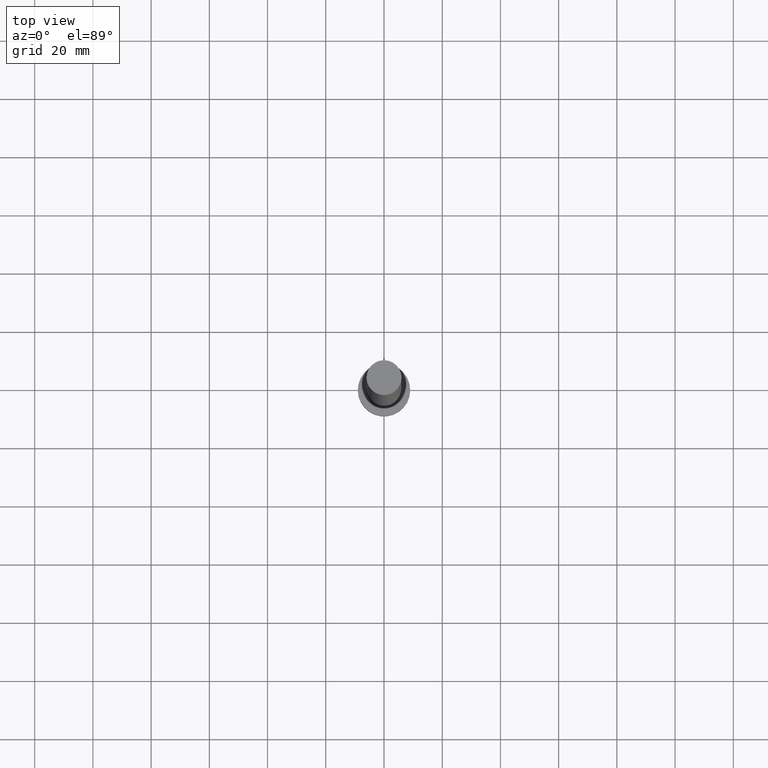
[diagram: clean part render]
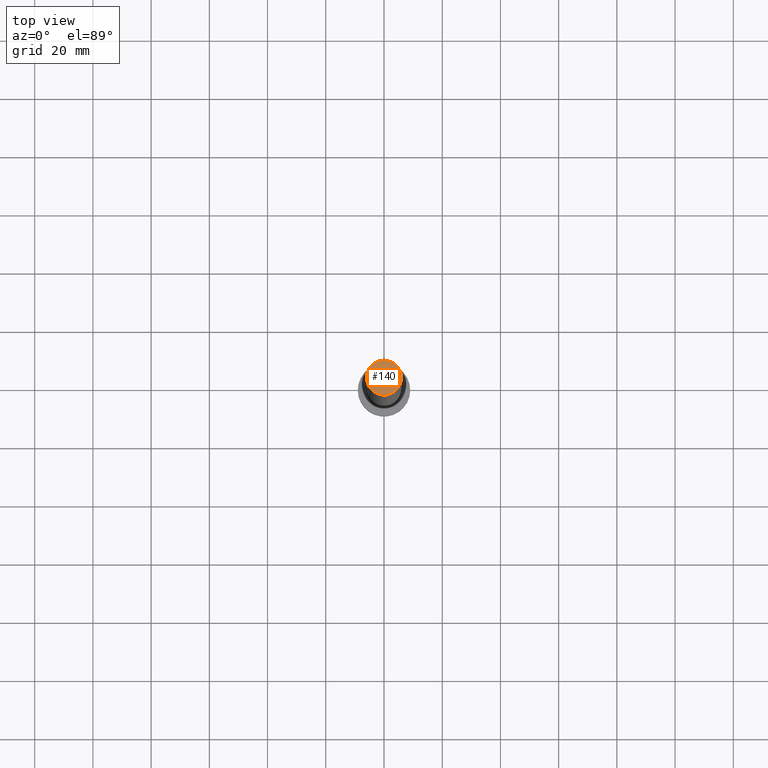
[diagram: same view with one face highlighted and labeled with its STEP entity id]
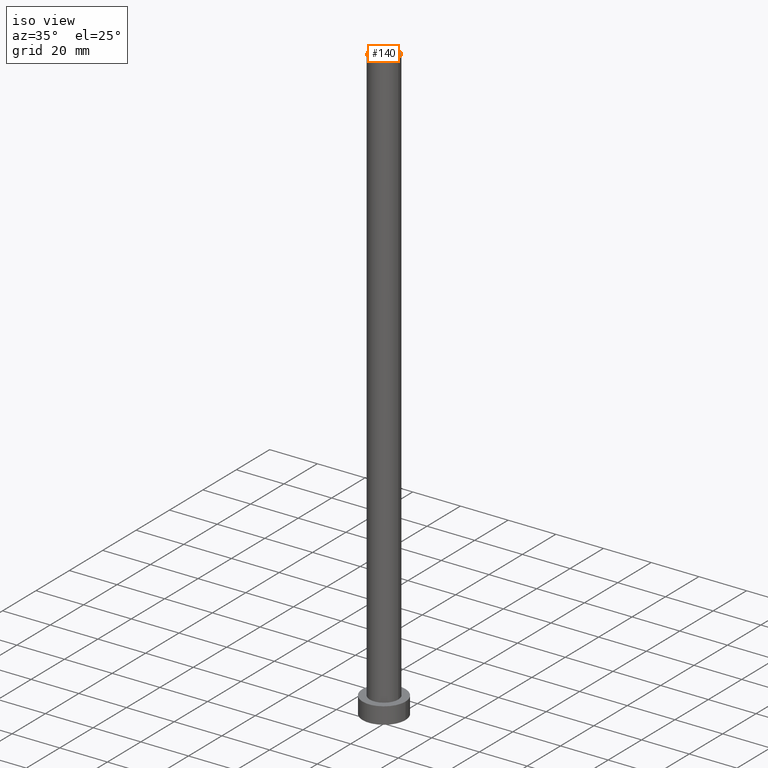
[diagram: same view with one face highlighted and labeled with its STEP entity id]
A machine part, top view. The second image highlights one B-rep face of the part: STEP entity #140.
A second angle (iso view) of the same face is appended — the face is thin or edge-on in the first view.
In plain terms, the highlighted planar face has unit normal (0, 0, 1).
Its self-contained STEP definition (entity closure, byte-faithful):
#11 = AXIS2_PLACEMENT_3D ( 'NONE', #236, #40, #215 ) ;
#12 = CARTESIAN_POINT ( 'NONE',  ( 0.000000000000000000, 0.000000000000000000, 250.0000000000000000 ) ) ;
#21 = DIRECTION ( 'NONE',  ( 0.000000000000000000, 0.000000000000000000, 1.000000000000000000 ) ) ;
#26 = EDGE_LOOP ( 'NONE', ( #63, #92 ) ) ;
#27 = AXIS2_PLACEMENT_3D ( 'NONE', #158, #21, #238 ) ;
#36 = CARTESIAN_POINT ( 'NONE',  ( -6.000000000000000888, 0.000000000000000000, 250.0000000000000000 ) ) ;
#37 = CIRCLE ( 'NONE', #27, 6.000000000000000888 ) ;
#40 = DIRECTION ( 'NONE',  ( 0.000000000000000000, 0.000000000000000000, 1.000000000000000000 ) ) ;
#42 = CIRCLE ( 'NONE', #74, 6.000000000000000888 ) ;
#48 = EDGE_CURVE ( 'NONE', #107, #53, #42, .T. ) ;
#53 = VERTEX_POINT ( 'NONE', #36 ) ;
#63 = ORIENTED_EDGE ( 'NONE', *, *, #150, .T. ) ;
#74 = AXIS2_PLACEMENT_3D ( 'NONE', #12, #113, #227 ) ;
#76 = FACE_OUTER_BOUND ( 'NONE', #26, .T. ) ;
#92 = ORIENTED_EDGE ( 'NONE', *, *, #48, .T. ) ;
#107 = VERTEX_POINT ( 'NONE', #157 ) ;
#113 = DIRECTION ( 'NONE',  ( 0.000000000000000000, 0.000000000000000000, 1.000000000000000000 ) ) ;
#140 = ADVANCED_FACE ( 'NONE', ( #76 ), #174, .T. ) ;
#150 = EDGE_CURVE ( 'NONE', #53, #107, #37, .T. ) ;
#157 = CARTESIAN_POINT ( 'NONE',  ( 6.000000000000000888, 7.347880794884120722E-16, 250.0000000000000000 ) ) ;
#158 = CARTESIAN_POINT ( 'NONE',  ( 0.000000000000000000, 0.000000000000000000, 250.0000000000000000 ) ) ;
#174 = PLANE ( 'NONE',  #11 ) ;
#215 = DIRECTION ( 'NONE',  ( 1.000000000000000000, 0.000000000000000000, -0.000000000000000000 ) ) ;
#227 = DIRECTION ( 'NONE',  ( 1.000000000000000000, 0.000000000000000000, 0.000000000000000000 ) ) ;
#236 = CARTESIAN_POINT ( 'NONE',  ( 0.000000000000000000, 0.000000000000000000, 250.0000000000000000 ) ) ;
#238 = DIRECTION ( 'NONE',  ( 1.000000000000000000, 0.000000000000000000, 0.000000000000000000 ) ) ;